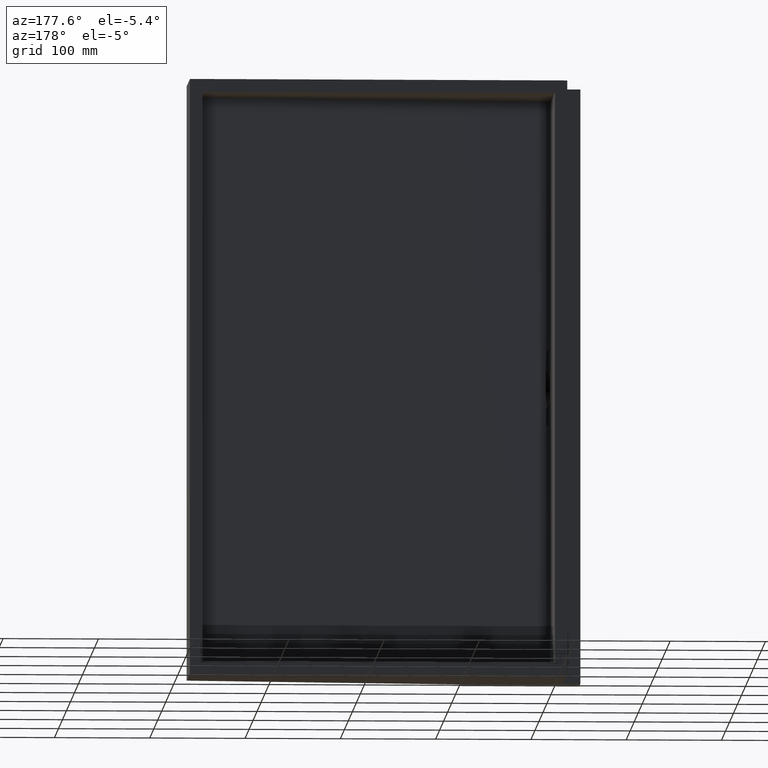
[diagram: clean part render]
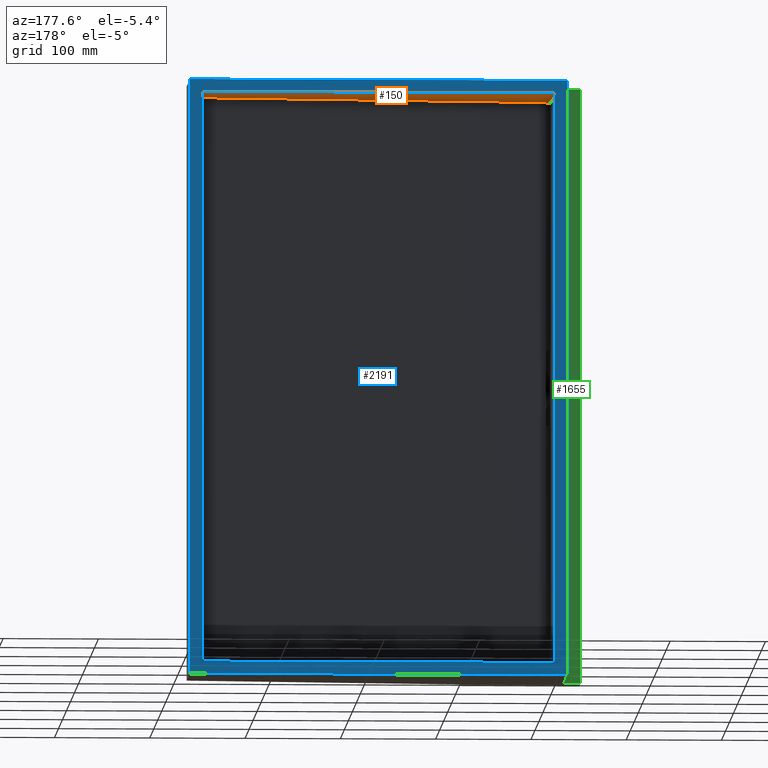
[diagram: same view with three faces highlighted in distinct colors, each labeled with its STEP entity id]
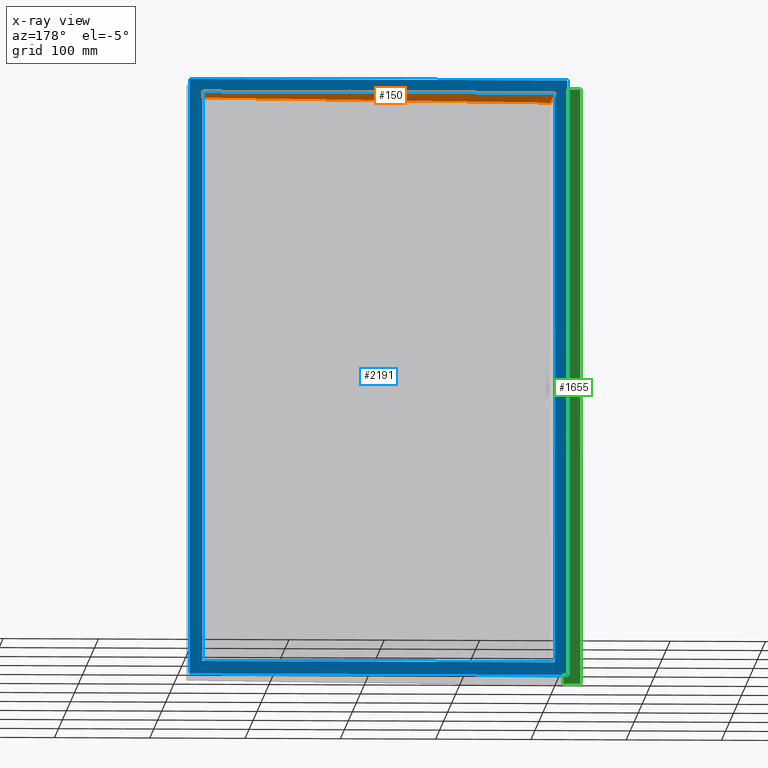
[diagram: x-ray of the same camera — body ghosted, the three highlighted faces saturated]
A machine part, auxiliary view with three faces highlighted in distinct colors.
The next image is the same camera in x-ray (body ghosted, the three faces saturated) — at least one of them is partly hidden behind the body in this view.
Their STEP definitions:

[orange] entity #150 — the highlighted planar face has unit normal (-0, 0, -1).
#11 = EDGE_CURVE ( 'NONE', #218, #1172, #1666, .T. ) ;
#37 = CARTESIAN_POINT ( 'NONE',  ( 0.0000000000000000000, 2.516663224617867900E-015, 0.0000000000000000000 ) ) ;
#73 = FACE_OUTER_BOUND ( 'NONE', #650, .T. ) ;
#101 = VECTOR ( 'NONE', #933, 1000.000000000000000 ) ;
#150 = ADVANCED_FACE ( 'NONE', ( #73 ), #1786, .T. ) ;
#218 = VERTEX_POINT ( 'NONE', #605 ) ;
#222 = DIRECTION ( 'NONE',  ( 0.0000000000000000000, -1.000000000000000000, 0.0000000000000000000 ) ) ;
#237 = CARTESIAN_POINT ( 'NONE',  ( 383.0000000000000000, -129.9999999999999700, 0.0000000000000000000 ) ) ;
#280 = CARTESIAN_POINT ( 'NONE',  ( 370.0000000000000000, 0.0000000000000000000, 0.0000000000000000000 ) ) ;
#289 = ORIENTED_EDGE ( 'NONE', *, *, #2373, .F. ) ;
#325 = CARTESIAN_POINT ( 'NONE',  ( 5.000000000000006200, -110.0000000000000000, 0.0000000000000000000 ) ) ;
#342 = ORIENTED_EDGE ( 'NONE', *, *, #1443, .T. ) ;
#369 = DIRECTION ( 'NONE',  ( -3.209238430557043800E-015, 1.000000000000000000, 0.0000000000000000000 ) ) ;
#461 = DIRECTION ( 'NONE',  ( -0.0000000000000000000, 0.0000000000000000000, -1.000000000000000000 ) ) ;
#481 = CARTESIAN_POINT ( 'NONE',  ( 370.0000000000000000, 0.0000000000000000000, 0.0000000000000000000 ) ) ;
#487 = VECTOR ( 'NONE', #369, 1000.000000000000000 ) ;
#526 = LINE ( 'NONE', #1541, #1627 ) ;
#605 = CARTESIAN_POINT ( 'NONE',  ( 5.000000000000060400, -109.4594594594594500, 0.0000000000000000000 ) ) ;
#650 = EDGE_LOOP ( 'NONE', ( #1154, #289, #2210, #1823, #342, #2829 ) ) ;
#674 = CARTESIAN_POINT ( 'NONE',  ( 370.0000000000000000, -70.00000000000000000, 0.0000000000000000000 ) ) ;
#920 = VECTOR ( 'NONE', #1439, 1000.000000000000000 ) ;
#933 = DIRECTION ( 'NONE',  ( -1.000000000000000000, 0.0000000000000000000, 0.0000000000000000000 ) ) ;
#1102 = CARTESIAN_POINT ( 'NONE',  ( 370.0000000000000000, 0.0000000000000000000, 0.0000000000000000000 ) ) ;
#1154 = ORIENTED_EDGE ( 'NONE', *, *, #2428, .F. ) ;
#1172 = VERTEX_POINT ( 'NONE', #1193 ) ;
#1193 = CARTESIAN_POINT ( 'NONE',  ( 370.0000000000000000, -70.00000000000000000, 1.110223024625156500E-013 ) ) ;
#1265 = EDGE_CURVE ( 'NONE', #1834, #218, #2263, .T. ) ;
#1352 = DIRECTION ( 'NONE',  ( 0.9942070475658493200, 0.1074818429800917800, 0.0000000000000000000 ) ) ;
#1439 = DIRECTION ( 'NONE',  ( -1.000000000000000000, -0.0000000000000000000, -0.0000000000000000000 ) ) ;
#1443 = EDGE_CURVE ( 'NONE', #1834, #2202, #2497, .T. ) ;
#1497 = CARTESIAN_POINT ( 'NONE',  ( 5.000000000000007100, -114.0000000000001000, 0.0000000000000000000 ) ) ;
#1526 = VERTEX_POINT ( 'NONE', #1102 ) ;
#1541 = CARTESIAN_POINT ( 'NONE',  ( 0.0000000000000000000, 0.0000000000000000000, 0.0000000000000000000 ) ) ;
#1627 = VECTOR ( 'NONE', #222, 1000.000000000000000 ) ;
#1666 = LINE ( 'NONE', #674, #2817 ) ;
#1752 = CARTESIAN_POINT ( 'NONE',  ( 0.0000000000000000000, -114.0000000000001000, 0.0000000000000000000 ) ) ;
#1786 = PLANE ( 'NONE',  #2549 ) ;
#1823 = ORIENTED_EDGE ( 'NONE', *, *, #1265, .F. ) ;
#1834 = VERTEX_POINT ( 'NONE', #1497 ) ;
#2005 = DIRECTION ( 'NONE',  ( -1.000000000000000000, 0.0000000000000000000, 0.0000000000000000000 ) ) ;
#2016 = VECTOR ( 'NONE', #2470, 1000.000000000000000 ) ;
#2089 = LINE ( 'NONE', #481, #2016 ) ;
#2202 = VERTEX_POINT ( 'NONE', #1752 ) ;
#2210 = ORIENTED_EDGE ( 'NONE', *, *, #11, .F. ) ;
#2263 = LINE ( 'NONE', #325, #487 ) ;
#2373 = EDGE_CURVE ( 'NONE', #1172, #1526, #2089, .T. ) ;
#2428 = EDGE_CURVE ( 'NONE', #1526, #2749, #2550, .T. ) ;
#2470 = DIRECTION ( 'NONE',  ( 0.0000000000000000000, 1.000000000000000000, 0.0000000000000000000 ) ) ;
#2497 = LINE ( 'NONE', #2566, #920 ) ;
#2549 = AXIS2_PLACEMENT_3D ( 'NONE', #237, #461, #2005 ) ;
#2550 = LINE ( 'NONE', #280, #101 ) ;
#2566 = CARTESIAN_POINT ( 'NONE',  ( 278.7316203875614100, -114.0000000000001000, 0.0000000000000000000 ) ) ;
#2642 = EDGE_CURVE ( 'NONE', #2749, #2202, #526, .T. ) ;
#2749 = VERTEX_POINT ( 'NONE', #37 ) ;
#2817 = VECTOR ( 'NONE', #1352, 1000.000000000000100 ) ;
#2829 = ORIENTED_EDGE ( 'NONE', *, *, #2642, .F. ) ;

[blue] entity #2191 — the highlighted planar face has unit normal (0, 1, -0).
#37 = CARTESIAN_POINT ( 'NONE',  ( 0.0000000000000000000, 2.516663224617867900E-015, 0.0000000000000000000 ) ) ;
#80 = EDGE_CURVE ( 'NONE', #1387, #358, #2668, .T. ) ;
#101 = VECTOR ( 'NONE', #933, 1000.000000000000000 ) ;
#122 = EDGE_CURVE ( 'NONE', #1511, #673, #1979, .T. ) ;
#131 = ORIENTED_EDGE ( 'NONE', *, *, #179, .F. ) ;
#176 = DIRECTION ( 'NONE',  ( -1.000000000000000000, 6.570922257487905200E-018, -0.0000000000000000000 ) ) ;
#179 = EDGE_CURVE ( 'NONE', #1526, #1464, #534, .T. ) ;
#280 = CARTESIAN_POINT ( 'NONE',  ( 370.0000000000000000, 0.0000000000000000000, 0.0000000000000000000 ) ) ;
#288 = CARTESIAN_POINT ( 'NONE',  ( 383.0000000000000000, 0.0000000000000000000, 13.00000000000000000 ) ) ;
#349 = EDGE_CURVE ( 'NONE', #2749, #1330, #1307, .T. ) ;
#358 = VERTEX_POINT ( 'NONE', #1419 ) ;
#376 = FACE_OUTER_BOUND ( 'NONE', #2230, .T. ) ;
#394 = CARTESIAN_POINT ( 'NONE',  ( -12.99999999999999800, 2.602085213965210600E-015, -613.0000000000000000 ) ) ;
#442 = CARTESIAN_POINT ( 'NONE',  ( 370.0000000000000000, 0.0000000000000000000, -600.0000000000000000 ) ) ;
#463 = DIRECTION ( 'NONE',  ( 0.0000000000000000000, -0.0000000000000000000, -1.000000000000000000 ) ) ;
#534 = LINE ( 'NONE', #1332, #1045 ) ;
#547 = CARTESIAN_POINT ( 'NONE',  ( 0.0000000000000000000, 0.0000000000000000000, 399.0051813123757300 ) ) ;
#599 = EDGE_CURVE ( 'NONE', #1511, #1387, #692, .T. ) ;
#603 = ORIENTED_EDGE ( 'NONE', *, *, #2020, .T. ) ;
#621 = DIRECTION ( 'NONE',  ( 0.0000000000000000000, 0.0000000000000000000, 1.000000000000000000 ) ) ;
#638 = CARTESIAN_POINT ( 'NONE',  ( -12.99999999999999800, 2.602085213965210600E-015, -613.0000000000000000 ) ) ;
#665 = DIRECTION ( 'NONE',  ( 1.000000000000000000, -0.0000000000000000000, -0.0000000000000000000 ) ) ;
#673 = VERTEX_POINT ( 'NONE', #288 ) ;
#692 = LINE ( 'NONE', #1064, #1803 ) ;
#793 = VECTOR ( 'NONE', #665, 1000.000000000000000 ) ;
#861 = DIRECTION ( 'NONE',  ( 6.570922257487906000E-018, 1.000000000000000000, -0.0000000000000000000 ) ) ;
#873 = VECTOR ( 'NONE', #621, 1000.000000000000000 ) ;
#887 = ORIENTED_EDGE ( 'NONE', *, *, #2428, .T. ) ;
#933 = DIRECTION ( 'NONE',  ( -1.000000000000000000, 0.0000000000000000000, 0.0000000000000000000 ) ) ;
#1008 = LINE ( 'NONE', #442, #793 ) ;
#1010 = CARTESIAN_POINT ( 'NONE',  ( 370.0000000000000000, 0.0000000000000000000, -600.0000000000000000 ) ) ;
#1045 = VECTOR ( 'NONE', #463, 1000.000000000000000 ) ;
#1064 = CARTESIAN_POINT ( 'NONE',  ( -12.99999999999999800, 2.602085213965210600E-015, -613.0000000000000000 ) ) ;
#1102 = CARTESIAN_POINT ( 'NONE',  ( 370.0000000000000000, 0.0000000000000000000, 0.0000000000000000000 ) ) ;
#1163 = EDGE_LOOP ( 'NONE', ( #1463, #603, #131, #887 ) ) ;
#1302 = DIRECTION ( 'NONE',  ( -1.000000000000000000, 6.570922257487906000E-018, 0.0000000000000000000 ) ) ;
#1307 = LINE ( 'NONE', #547, #2436 ) ;
#1320 = VECTOR ( 'NONE', #2471, 1000.000000000000000 ) ;
#1330 = VERTEX_POINT ( 'NONE', #1405 ) ;
#1332 = CARTESIAN_POINT ( 'NONE',  ( 370.0000000000000000, 0.0000000000000000000, 399.0051813123757300 ) ) ;
#1364 = EDGE_CURVE ( 'NONE', #673, #358, #2042, .T. ) ;
#1387 = VERTEX_POINT ( 'NONE', #2787 ) ;
#1405 = CARTESIAN_POINT ( 'NONE',  ( 0.0000000000000000000, 0.0000000000000000000, -600.0000000000000000 ) ) ;
#1419 = CARTESIAN_POINT ( 'NONE',  ( -12.99999999999999800, 2.602085213965210600E-015, 13.00000000000000000 ) ) ;
#1463 = ORIENTED_EDGE ( 'NONE', *, *, #349, .T. ) ;
#1464 = VERTEX_POINT ( 'NONE', #1010 ) ;
#1509 = VECTOR ( 'NONE', #1855, 1000.000000000000000 ) ;
#1511 = VERTEX_POINT ( 'NONE', #1685 ) ;
#1526 = VERTEX_POINT ( 'NONE', #1102 ) ;
#1604 = PLANE ( 'NONE',  #1622 ) ;
#1622 = AXIS2_PLACEMENT_3D ( 'NONE', #638, #861, #1302 ) ;
#1685 = CARTESIAN_POINT ( 'NONE',  ( 383.0000000000000000, 0.0000000000000000000, -613.0000000000000000 ) ) ;
#1734 = ORIENTED_EDGE ( 'NONE', *, *, #80, .T. ) ;
#1803 = VECTOR ( 'NONE', #176, 1000.000000000000000 ) ;
#1829 = FACE_BOUND ( 'NONE', #1163, .T. ) ;
#1855 = DIRECTION ( 'NONE',  ( -1.000000000000000000, 6.570922257487905200E-018, -0.0000000000000000000 ) ) ;
#1901 = ORIENTED_EDGE ( 'NONE', *, *, #599, .T. ) ;
#1979 = LINE ( 'NONE', #2018, #1320 ) ;
#2018 = CARTESIAN_POINT ( 'NONE',  ( 383.0000000000000000, 0.0000000000000000000, -613.0000000000000000 ) ) ;
#2020 = EDGE_CURVE ( 'NONE', #1330, #1464, #1008, .T. ) ;
#2042 = LINE ( 'NONE', #2174, #1509 ) ;
#2092 = DIRECTION ( 'NONE',  ( 0.0000000000000000000, -0.0000000000000000000, -1.000000000000000000 ) ) ;
#2174 = CARTESIAN_POINT ( 'NONE',  ( -12.99999999999999800, 2.602085213965210600E-015, 13.00000000000000000 ) ) ;
#2191 = ADVANCED_FACE ( 'NONE', ( #376, #1829 ), #1604, .T. ) ;
#2230 = EDGE_LOOP ( 'NONE', ( #2717, #2361, #1901, #1734 ) ) ;
#2361 = ORIENTED_EDGE ( 'NONE', *, *, #122, .F. ) ;
#2428 = EDGE_CURVE ( 'NONE', #1526, #2749, #2550, .T. ) ;
#2436 = VECTOR ( 'NONE', #2092, 1000.000000000000000 ) ;
#2471 = DIRECTION ( 'NONE',  ( 0.0000000000000000000, 0.0000000000000000000, 1.000000000000000000 ) ) ;
#2550 = LINE ( 'NONE', #280, #101 ) ;
#2668 = LINE ( 'NONE', #394, #873 ) ;
#2717 = ORIENTED_EDGE ( 'NONE', *, *, #1364, .F. ) ;
#2749 = VERTEX_POINT ( 'NONE', #37 ) ;
#2787 = CARTESIAN_POINT ( 'NONE',  ( -12.99999999999999800, 2.602085213965210600E-015, -613.0000000000000000 ) ) ;

[green] entity #1655 — the highlighted planar face has unit normal (0, 1, 0).
#13 = DIRECTION ( 'NONE',  ( -1.000000000000000000, -0.0000000000000000000, -0.0000000000000000000 ) ) ;
#35 = VECTOR ( 'NONE', #527, 1000.000000000000000 ) ;
#134 = VECTOR ( 'NONE', #13, 1000.000000000000000 ) ;
#208 = VERTEX_POINT ( 'NONE', #1927 ) ;
#242 = CARTESIAN_POINT ( 'NONE',  ( -31.00000000000000000, -100.0000000000000000, 13.00000000000000000 ) ) ;
#250 = CARTESIAN_POINT ( 'NONE',  ( -13.00000000000000000, -100.0000000000000000, 13.00000000000000000 ) ) ;
#306 = ORIENTED_EDGE ( 'NONE', *, *, #2073, .F. ) ;
#416 = DIRECTION ( 'NONE',  ( 0.0000000000000000000, 0.0000000000000000000, 1.000000000000000000 ) ) ;
#460 = AXIS2_PLACEMENT_3D ( 'NONE', #1132, #2709, #1344 ) ;
#488 = ORIENTED_EDGE ( 'NONE', *, *, #818, .F. ) ;
#496 = EDGE_CURVE ( 'NONE', #587, #208, #959, .T. ) ;
#527 = DIRECTION ( 'NONE',  ( -1.000000000000000000, -0.0000000000000000000, -0.0000000000000000000 ) ) ;
#587 = VERTEX_POINT ( 'NONE', #2409 ) ;
#798 = CARTESIAN_POINT ( 'NONE',  ( -13.00000000000000000, -100.0000000000000000, -613.0000000000000000 ) ) ;
#818 = EDGE_CURVE ( 'NONE', #1051, #2132, #831, .T. ) ;
#831 = LINE ( 'NONE', #2184, #2546 ) ;
#959 = LINE ( 'NONE', #2813, #1108 ) ;
#1015 = ORIENTED_EDGE ( 'NONE', *, *, #496, .T. ) ;
#1051 = VERTEX_POINT ( 'NONE', #798 ) ;
#1084 = EDGE_LOOP ( 'NONE', ( #306, #488, #2594, #1015 ) ) ;
#1108 = VECTOR ( 'NONE', #416, 1000.000000000000000 ) ;
#1132 = CARTESIAN_POINT ( 'NONE',  ( -31.00000000000000000, -100.0000000000000000, -613.0000000000000000 ) ) ;
#1207 = FACE_OUTER_BOUND ( 'NONE', #1084, .T. ) ;
#1283 = LINE ( 'NONE', #2521, #35 ) ;
#1312 = LINE ( 'NONE', #242, #134 ) ;
#1344 = DIRECTION ( 'NONE',  ( 0.0000000000000000000, -0.0000000000000000000, 1.000000000000000000 ) ) ;
#1655 = ADVANCED_FACE ( 'NONE', ( #1207 ), #2011, .T. ) ;
#1927 = CARTESIAN_POINT ( 'NONE',  ( -31.00000000000000000, -100.0000000000000000, 13.00000000000000000 ) ) ;
#1940 = DIRECTION ( 'NONE',  ( 0.0000000000000000000, 0.0000000000000000000, 1.000000000000000000 ) ) ;
#2011 = PLANE ( 'NONE',  #460 ) ;
#2073 = EDGE_CURVE ( 'NONE', #2132, #208, #1312, .T. ) ;
#2132 = VERTEX_POINT ( 'NONE', #250 ) ;
#2184 = CARTESIAN_POINT ( 'NONE',  ( -13.00000000000000000, -100.0000000000000000, -613.0000000000000000 ) ) ;
#2409 = CARTESIAN_POINT ( 'NONE',  ( -31.00000000000000000, -100.0000000000000000, -613.0000000000000000 ) ) ;
#2467 = EDGE_CURVE ( 'NONE', #1051, #587, #1283, .T. ) ;
#2521 = CARTESIAN_POINT ( 'NONE',  ( -31.00000000000000000, -100.0000000000000000, -613.0000000000000000 ) ) ;
#2546 = VECTOR ( 'NONE', #1940, 1000.000000000000000 ) ;
#2594 = ORIENTED_EDGE ( 'NONE', *, *, #2467, .T. ) ;
#2709 = DIRECTION ( 'NONE',  ( 0.0000000000000000000, 1.000000000000000000, 0.0000000000000000000 ) ) ;
#2813 = CARTESIAN_POINT ( 'NONE',  ( -31.00000000000000000, -100.0000000000000000, -613.0000000000000000 ) ) ;